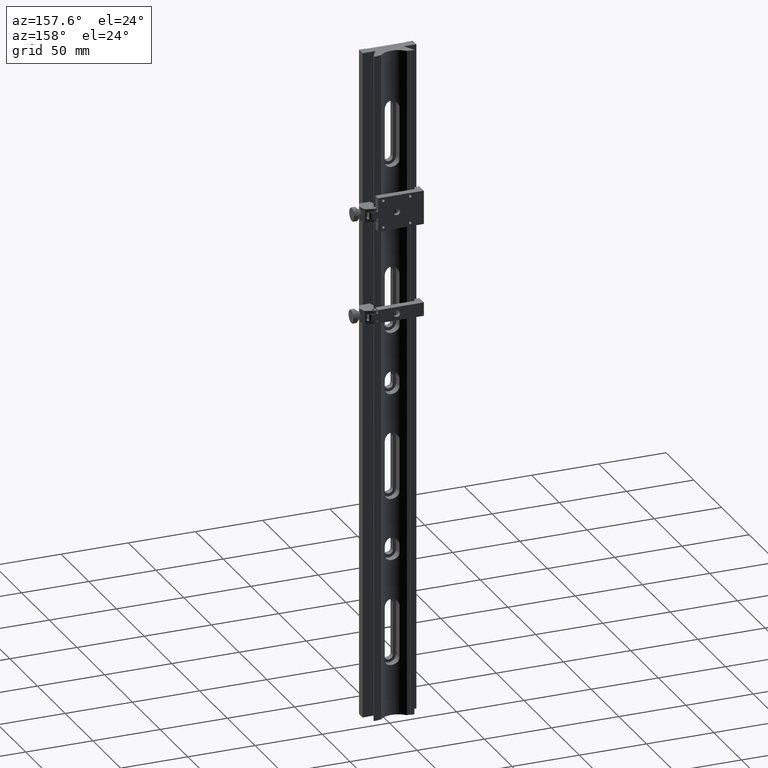
[diagram: clean part render]
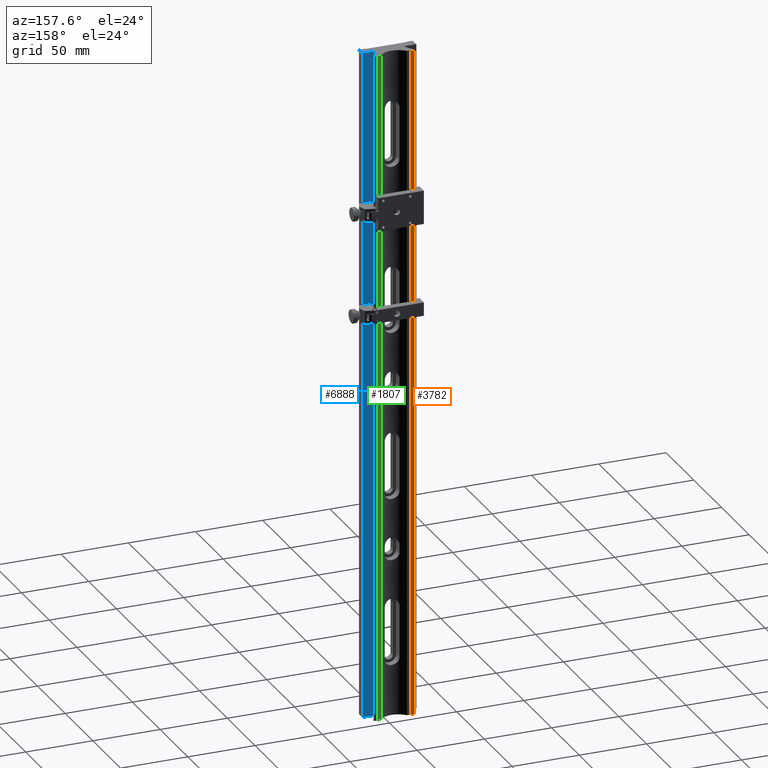
[diagram: same view with three faces highlighted in distinct colors, each labeled with its STEP entity id]
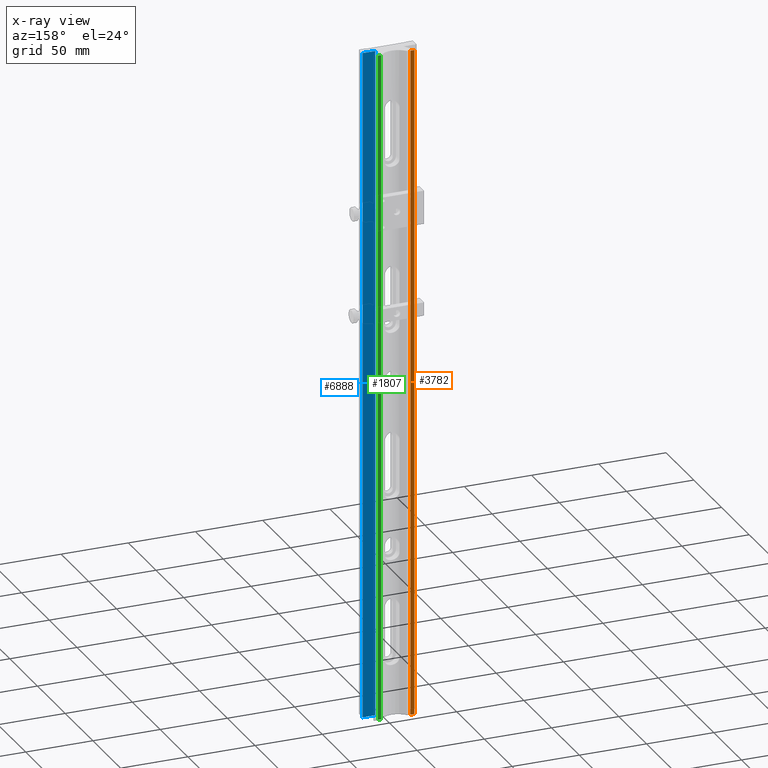
[diagram: x-ray of the same camera — body ghosted, the three highlighted faces saturated]
A machine part, auxiliary view with three faces highlighted in distinct colors.
The next image is the same camera in x-ray (body ghosted, the three faces saturated) — at least one of them is partly hidden behind the body in this view.
Their STEP definitions:

[orange] entity #3782 — the highlighted planar face has unit normal (0, -1, 0).
#224 = VERTEX_POINT ( 'NONE', #3272 ) ;
#595 = EDGE_CURVE ( 'NONE', #6553, #224, #1239, .T. ) ;
#709 = DIRECTION ( 'NONE',  ( 0.000000000000000000, -1.000000000000000000, 0.000000000000000000 ) ) ;
#1155 = LINE ( 'NONE', #5671, #3983 ) ;
#1239 = LINE ( 'NONE', #2490, #3040 ) ;
#1345 = VERTEX_POINT ( 'NONE', #1982 ) ;
#1514 = CARTESIAN_POINT ( 'NONE',  ( -14.99999999999995559, 8.500000000000000000, 250.0000000000000000 ) ) ;
#1952 = VERTEX_POINT ( 'NONE', #6710 ) ;
#1982 = CARTESIAN_POINT ( 'NONE',  ( -12.00000000000003730, 8.499999999999998224, -250.0000000000000000 ) ) ;
#1993 = CARTESIAN_POINT ( 'NONE',  ( -15.50000000000000000, 8.500000000000000000, 250.0000000000000000 ) ) ;
#2118 = DIRECTION ( 'NONE',  ( -1.000000000000000000, 0.000000000000000000, -0.000000000000000000 ) ) ;
#2490 = CARTESIAN_POINT ( 'NONE',  ( -15.50000000000000000, 8.500000000000000000, 250.0000000000000000 ) ) ;
#2770 = LINE ( 'NONE', #3498, #4790 ) ;
#3040 = VECTOR ( 'NONE', #7203, 1000.000000000000000 ) ;
#3160 = EDGE_LOOP ( 'NONE', ( #5830, #7729, #5415, #7196 ) ) ;
#3272 = CARTESIAN_POINT ( 'NONE',  ( -14.99999999999995559, 8.500000000000000000, 250.0000000000000000 ) ) ;
#3332 = DIRECTION ( 'NONE',  ( 1.000000000000000000, 0.000000000000000000, 0.000000000000000000 ) ) ;
#3498 = CARTESIAN_POINT ( 'NONE',  ( -15.50000000000000000, 8.500000000000000000, -250.0000000000000000 ) ) ;
#3782 = ADVANCED_FACE ( 'NONE', ( #5261 ), #7877, .F. ) ;
#3915 = EDGE_CURVE ( 'NONE', #1345, #1952, #2770, .T. ) ;
#3983 = VECTOR ( 'NONE', #6222, 1000.000000000000000 ) ;
#4146 = DIRECTION ( 'NONE',  ( 0.000000000000000000, 0.000000000000000000, 1.000000000000000000 ) ) ;
#4350 = EDGE_CURVE ( 'NONE', #1345, #6553, #1155, .T. ) ;
#4790 = VECTOR ( 'NONE', #2118, 1000.000000000000000 ) ;
#5261 = FACE_OUTER_BOUND ( 'NONE', #3160, .T. ) ;
#5415 = ORIENTED_EDGE ( 'NONE', *, *, #595, .F. ) ;
#5671 = CARTESIAN_POINT ( 'NONE',  ( -11.99999999999997158, 8.499999999999998224, 283.9794224532299154 ) ) ;
#5758 = CARTESIAN_POINT ( 'NONE',  ( -11.99999999999997335, 8.499999999999998224, 250.0000000000000000 ) ) ;
#5795 = EDGE_CURVE ( 'NONE', #1952, #224, #6106, .T. ) ;
#5830 = ORIENTED_EDGE ( 'NONE', *, *, #3915, .T. ) ;
#6106 = LINE ( 'NONE', #1514, #7599 ) ;
#6222 = DIRECTION ( 'NONE',  ( 1.221724772161974472E-16, 0.000000000000000000, 1.000000000000000000 ) ) ;
#6553 = VERTEX_POINT ( 'NONE', #5758 ) ;
#6710 = CARTESIAN_POINT ( 'NONE',  ( -14.99999999999999822, 8.499999999999959144, -250.0000000000000000 ) ) ;
#6837 = AXIS2_PLACEMENT_3D ( 'NONE', #1993, #709, #3332 ) ;
#7196 = ORIENTED_EDGE ( 'NONE', *, *, #4350, .F. ) ;
#7203 = DIRECTION ( 'NONE',  ( -1.000000000000000000, 0.000000000000000000, -0.000000000000000000 ) ) ;
#7599 = VECTOR ( 'NONE', #4146, 1000.000000000000000 ) ;
#7729 = ORIENTED_EDGE ( 'NONE', *, *, #5795, .T. ) ;
#7877 = PLANE ( 'NONE',  #6837 ) ;

[blue] entity #6888 — the highlighted planar face has unit normal (0, -1, 0).
#33 = LINE ( 'NONE', #3905, #394 ) ;
#394 = VECTOR ( 'NONE', #5069, 1000.000000000000000 ) ;
#432 = VERTEX_POINT ( 'NONE', #466 ) ;
#452 = LINE ( 'NONE', #3078, #8228 ) ;
#466 = CARTESIAN_POINT ( 'NONE',  ( 10.59252271188812777, 2.594419806801887381E-15, 250.0000000000000000 ) ) ;
#547 = DIRECTION ( 'NONE',  ( 2.449293598294706414E-16, -1.000000000000000000, 0.000000000000000000 ) ) ;
#1298 = VERTEX_POINT ( 'NONE', #3364 ) ;
#1315 = CARTESIAN_POINT ( 'NONE',  ( 10.59252271188812777, 2.594419806801887381E-15, -250.0000000000000000 ) ) ;
#1871 = DIRECTION ( 'NONE',  ( -0.000000000000000000, 0.000000000000000000, -1.000000000000000000 ) ) ;
#1879 = DIRECTION ( 'NONE',  ( 1.000000000000000000, 2.449293598294706414E-16, 0.000000000000000000 ) ) ;
#2630 = LINE ( 'NONE', #3965, #7120 ) ;
#3078 = CARTESIAN_POINT ( 'NONE',  ( 10.59252271188812777, 2.594419806801887381E-15, 250.0000000000000000 ) ) ;
#3194 = DIRECTION ( 'NONE',  ( -0.000000000000000000, 0.000000000000000000, -1.000000000000000000 ) ) ;
#3277 = ORIENTED_EDGE ( 'NONE', *, *, #6658, .F. ) ;
#3364 = CARTESIAN_POINT ( 'NONE',  ( 20.00000000000000000, 4.898587196589413026E-15, -250.0000000000000000 ) ) ;
#3422 = EDGE_CURVE ( 'NONE', #1298, #4772, #33, .T. ) ;
#3517 = CARTESIAN_POINT ( 'NONE',  ( 20.00000000000000000, 4.898587196589413026E-15, 250.0000000000000000 ) ) ;
#3842 = ORIENTED_EDGE ( 'NONE', *, *, #4070, .T. ) ;
#3905 = CARTESIAN_POINT ( 'NONE',  ( 20.00000000000000000, 4.898587196589413026E-15, -250.0000000000000000 ) ) ;
#3965 = CARTESIAN_POINT ( 'NONE',  ( 20.00000000000000000, 4.898587196589413026E-15, 250.0000000000000000 ) ) ;
#4070 = EDGE_CURVE ( 'NONE', #7423, #1298, #2630, .T. ) ;
#4116 = AXIS2_PLACEMENT_3D ( 'NONE', #7115, #547, #1879 ) ;
#4772 = VERTEX_POINT ( 'NONE', #1315 ) ;
#5069 = DIRECTION ( 'NONE',  ( -1.000000000000000000, -2.449293598294706414E-16, 0.000000000000000000 ) ) ;
#5187 = FACE_OUTER_BOUND ( 'NONE', #7147, .T. ) ;
#5815 = ORIENTED_EDGE ( 'NONE', *, *, #3422, .T. ) ;
#6128 = DIRECTION ( 'NONE',  ( -1.000000000000000000, -2.449293598294706414E-16, 0.000000000000000000 ) ) ;
#6258 = LINE ( 'NONE', #3517, #6444 ) ;
#6444 = VECTOR ( 'NONE', #6128, 1000.000000000000000 ) ;
#6658 = EDGE_CURVE ( 'NONE', #7423, #432, #6258, .T. ) ;
#6678 = CARTESIAN_POINT ( 'NONE',  ( 20.00000000000000000, 4.898587196589413026E-15, 250.0000000000000000 ) ) ;
#6888 = ADVANCED_FACE ( 'NONE', ( #5187 ), #7808, .F. ) ;
#7115 = CARTESIAN_POINT ( 'NONE',  ( 20.00000000000000000, 4.898587196589413026E-15, 250.0000000000000000 ) ) ;
#7120 = VECTOR ( 'NONE', #3194, 1000.000000000000000 ) ;
#7147 = EDGE_LOOP ( 'NONE', ( #5815, #7871, #3277, #3842 ) ) ;
#7379 = EDGE_CURVE ( 'NONE', #432, #4772, #452, .T. ) ;
#7423 = VERTEX_POINT ( 'NONE', #6678 ) ;
#7808 = PLANE ( 'NONE',  #4116 ) ;
#7871 = ORIENTED_EDGE ( 'NONE', *, *, #7379, .F. ) ;
#8228 = VECTOR ( 'NONE', #1871, 1000.000000000000000 ) ;

[green] entity #1807 — the highlighted planar face has unit normal (-0, 1, 0).
#1 = CARTESIAN_POINT ( 'NONE',  ( 9.604686356149276349, 8.000000000000001776, 249.9999999999999716 ) ) ;
#85 = VERTEX_POINT ( 'NONE', #1 ) ;
#428 = CARTESIAN_POINT ( 'NONE',  ( 9.604686356149276349, 8.000000000000001776, -250.0000000000000000 ) ) ;
#530 = VECTOR ( 'NONE', #5240, 1000.000000000000000 ) ;
#700 = LINE ( 'NONE', #4768, #1846 ) ;
#1004 = VERTEX_POINT ( 'NONE', #3171 ) ;
#1278 = LINE ( 'NONE', #3951, #3374 ) ;
#1501 = DIRECTION ( 'NONE',  ( -1.000000000000000000, -1.445602896647339163E-16, 0.000000000000000000 ) ) ;
#1619 = VERTEX_POINT ( 'NONE', #428 ) ;
#1807 = ADVANCED_FACE ( 'NONE', ( #3580 ), #5386, .T. ) ;
#1846 = VECTOR ( 'NONE', #1501, 1000.000000000000000 ) ;
#2724 = DIRECTION ( 'NONE',  ( -1.445602896647339163E-16, 1.000000000000000000, 1.766128869543160699E-32 ) ) ;
#3129 = CARTESIAN_POINT ( 'NONE',  ( 12.00000000000002665, 8.000000000000001776, 250.0000000000000000 ) ) ;
#3171 = CARTESIAN_POINT ( 'NONE',  ( 12.00000000000003020, 8.000000000000001776, -250.0000000000000000 ) ) ;
#3276 = DIRECTION ( 'NONE',  ( 0.000000000000000000, -0.000000000000000000, 1.000000000000000000 ) ) ;
#3338 = EDGE_CURVE ( 'NONE', #5759, #1004, #1278, .T. ) ;
#3374 = VECTOR ( 'NONE', #7082, 1000.000000000000000 ) ;
#3580 = FACE_OUTER_BOUND ( 'NONE', #6371, .T. ) ;
#3951 = CARTESIAN_POINT ( 'NONE',  ( 12.00000000000003020, 8.000000000000001776, 283.9794224532299154 ) ) ;
#4443 = EDGE_CURVE ( 'NONE', #1004, #1619, #8450, .T. ) ;
#4768 = CARTESIAN_POINT ( 'NONE',  ( 9.157674552523589243E-16, 8.000000000000000000, 250.0000000000000000 ) ) ;
#5061 = ORIENTED_EDGE ( 'NONE', *, *, #4443, .T. ) ;
#5240 = DIRECTION ( 'NONE',  ( -1.000000000000000000, -1.445602896647339163E-16, 0.000000000000000000 ) ) ;
#5386 = PLANE ( 'NONE',  #6554 ) ;
#5589 = ORIENTED_EDGE ( 'NONE', *, *, #3338, .T. ) ;
#5759 = VERTEX_POINT ( 'NONE', #3129 ) ;
#6009 = EDGE_CURVE ( 'NONE', #1619, #85, #7055, .T. ) ;
#6263 = EDGE_CURVE ( 'NONE', #5759, #85, #700, .T. ) ;
#6371 = EDGE_LOOP ( 'NONE', ( #5589, #5061, #7222, #6510 ) ) ;
#6510 = ORIENTED_EDGE ( 'NONE', *, *, #6263, .F. ) ;
#6542 = CARTESIAN_POINT ( 'NONE',  ( 9.604686356149276349, 8.000000000000001776, 250.0000000000000000 ) ) ;
#6554 = AXIS2_PLACEMENT_3D ( 'NONE', #8043, #2724, #6712 ) ;
#6712 = DIRECTION ( 'NONE',  ( -1.000000000000000000, -1.445602896647339163E-16, 0.000000000000000000 ) ) ;
#7055 = LINE ( 'NONE', #6542, #7882 ) ;
#7082 = DIRECTION ( 'NONE',  ( -1.221724772161974472E-16, -0.000000000000000000, -1.000000000000000000 ) ) ;
#7222 = ORIENTED_EDGE ( 'NONE', *, *, #6009, .T. ) ;
#7816 = CARTESIAN_POINT ( 'NONE',  ( 9.157674552523589243E-16, 8.000000000000000000, -250.0000000000000000 ) ) ;
#7882 = VECTOR ( 'NONE', #3276, 1000.000000000000000 ) ;
#8043 = CARTESIAN_POINT ( 'NONE',  ( -1.123668541772420414E-15, 8.000000000000000000, 1.501209539111686635E-31 ) ) ;
#8450 = LINE ( 'NONE', #7816, #530 ) ;